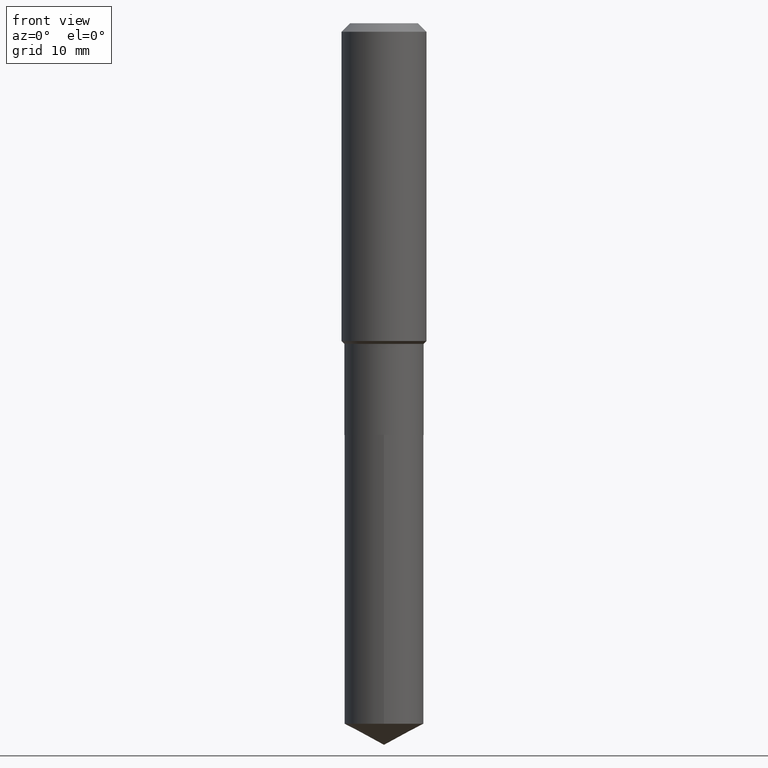
[diagram: clean part render]
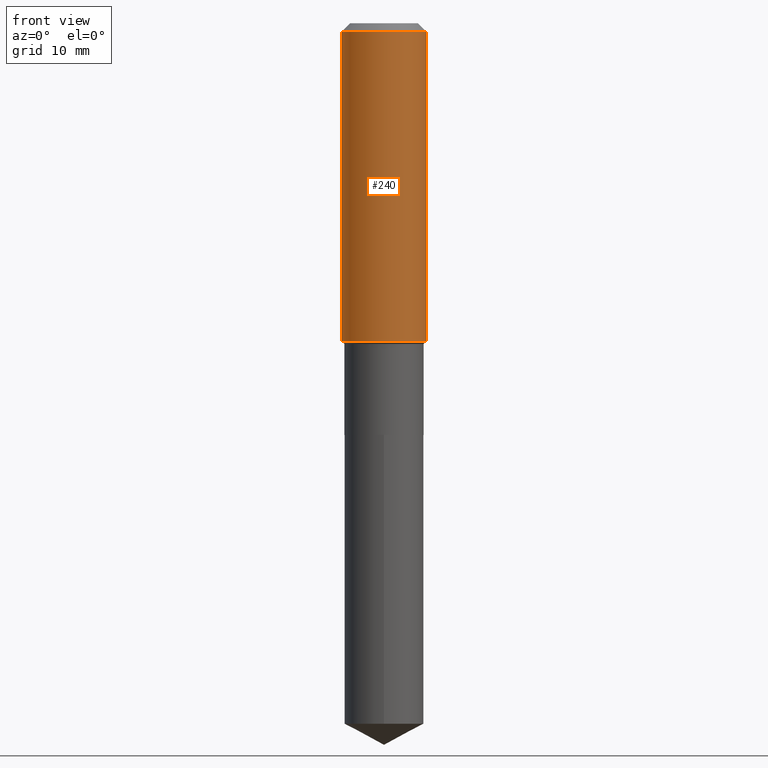
[diagram: same view with one face highlighted and labeled with its STEP entity id]
A machine part, front view. The second image highlights one B-rep face of the part: STEP entity #240.
In plain terms, the highlighted cylindrical surface (partial cylindrical patch) has radius 5.9995 mm, axis along (-0, 0, 1).
Its self-contained STEP definition (entity closure, byte-faithful):
#3 = ORIENTED_EDGE ( 'NONE', *, *, #194, .T. ) ;
#11 = ORIENTED_EDGE ( 'NONE', *, *, #72, .T. ) ;
#19 = DIRECTION ( 'NONE',  ( -2.445468806185136597E-29, 3.491481338843145583E-15, 1.000000000000000000 ) ) ;
#33 = DIRECTION ( 'NONE',  ( -2.445468806185136597E-29, 3.491481338843145583E-15, 1.000000000000000000 ) ) ;
#35 = DIRECTION ( 'NONE',  ( 1.000000000000000000, -6.982962677686266711E-15, 0.000000000000000000 ) ) ;
#56 = VERTEX_POINT ( 'NONE', #144 ) ;
#72 = EDGE_CURVE ( 'NONE', #56, #245, #467, .T. ) ;
#74 = LINE ( 'NONE', #263, #229 ) ;
#89 = ORIENTED_EDGE ( 'NONE', *, *, #337, .F. ) ;
#121 = LINE ( 'NONE', #167, #169 ) ;
#131 = EDGE_LOOP ( 'NONE', ( #89, #11, #3, #277 ) ) ;
#144 = CARTESIAN_POINT ( 'NONE',  ( -0.2362000000000002153, -4.496208231811802153E-15, -1.768449999999999855 ) ) ;
#147 = CARTESIAN_POINT ( 'NONE',  ( 1.155239464041865506E-30, -1.649375784469511859E-16, -0.04724000000000028177 ) ) ;
#154 = DIRECTION ( 'NONE',  ( -2.445468806185136877E-29, 3.491481338843145188E-15, 1.000000000000000000 ) ) ;
#165 = CARTESIAN_POINT ( 'NONE',  ( 0.2361999999999999933, -1.814313362916447440E-15, -0.04724000000000028177 ) ) ;
#167 = CARTESIAN_POINT ( 'NONE',  ( -0.2362000000000001043, 1.678301941865357380E-15, -1.161852468318209317E-29 ) ) ;
#169 = VECTOR ( 'NONE', #384, 39.37007874015748143 ) ;
#184 = CYLINDRICAL_SURFACE ( 'NONE', #386, 0.2362000000000001043 ) ;
#194 = EDGE_CURVE ( 'NONE', #245, #299, #74, .T. ) ;
#196 = VERTEX_POINT ( 'NONE', #303 ) ;
#220 = CARTESIAN_POINT ( 'NONE',  ( 0.000000000000000000, 0.000000000000000000, 0.000000000000000000 ) ) ;
#229 = VECTOR ( 'NONE', #154, 39.37007874015748143 ) ;
#240 = ADVANCED_FACE ( 'NONE', ( #406 ), #184, .T. ) ;
#245 = VERTEX_POINT ( 'NONE', #371 ) ;
#248 = EDGE_CURVE ( 'NONE', #196, #299, #404, .T. ) ;
#250 = CARTESIAN_POINT ( 'NONE',  ( 4.324689310298104338E-29, -6.174510173677160125E-15, -1.768449999999999855 ) ) ;
#254 = AXIS2_PLACEMENT_3D ( 'NONE', #250, #19, #399 ) ;
#263 = CARTESIAN_POINT ( 'NONE',  ( 0.2362000000000001043, -1.649375784469496920E-15, 1.151752954443000508E-29 ) ) ;
#277 = ORIENTED_EDGE ( 'NONE', *, *, #248, .F. ) ;
#299 = VERTEX_POINT ( 'NONE', #165 ) ;
#303 = CARTESIAN_POINT ( 'NONE',  ( -0.2361999999999999933, -1.491421934196697942E-15, -0.04724000000000028177 ) ) ;
#326 = AXIS2_PLACEMENT_3D ( 'NONE', #147, #33, #35 ) ;
#337 = EDGE_CURVE ( 'NONE', #56, #196, #121, .T. ) ;
#371 = CARTESIAN_POINT ( 'NONE',  ( 0.2362000000000002153, -7.823885958146657439E-15, -1.768449999999999855 ) ) ;
#384 = DIRECTION ( 'NONE',  ( -2.445468806185136877E-29, 3.491481338843145188E-15, 1.000000000000000000 ) ) ;
#386 = AXIS2_PLACEMENT_3D ( 'NONE', #220, #483, #409 ) ;
#399 = DIRECTION ( 'NONE',  ( 1.000000000000000000, -6.982962677686266711E-15, 0.000000000000000000 ) ) ;
#404 = CIRCLE ( 'NONE', #326, 0.2361999999999999933 ) ;
#406 = FACE_OUTER_BOUND ( 'NONE', #131, .T. ) ;
#409 = DIRECTION ( 'NONE',  ( 1.000000000000000000, -6.982962677686266711E-15, 4.876176775795935793E-29 ) ) ;
#467 = CIRCLE ( 'NONE', #254, 0.2362000000000002153 ) ;
#483 = DIRECTION ( 'NONE',  ( -2.445468806185136597E-29, 3.491481338843145583E-15, 1.000000000000000000 ) ) ;